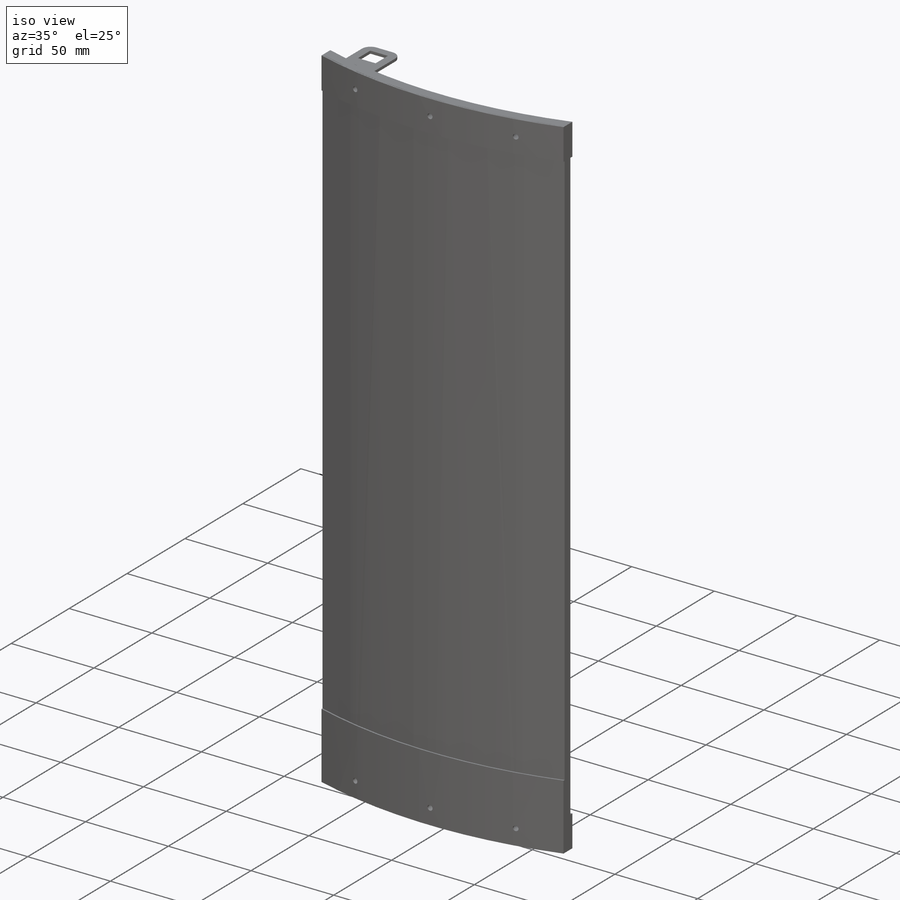
[diagram: iso view]
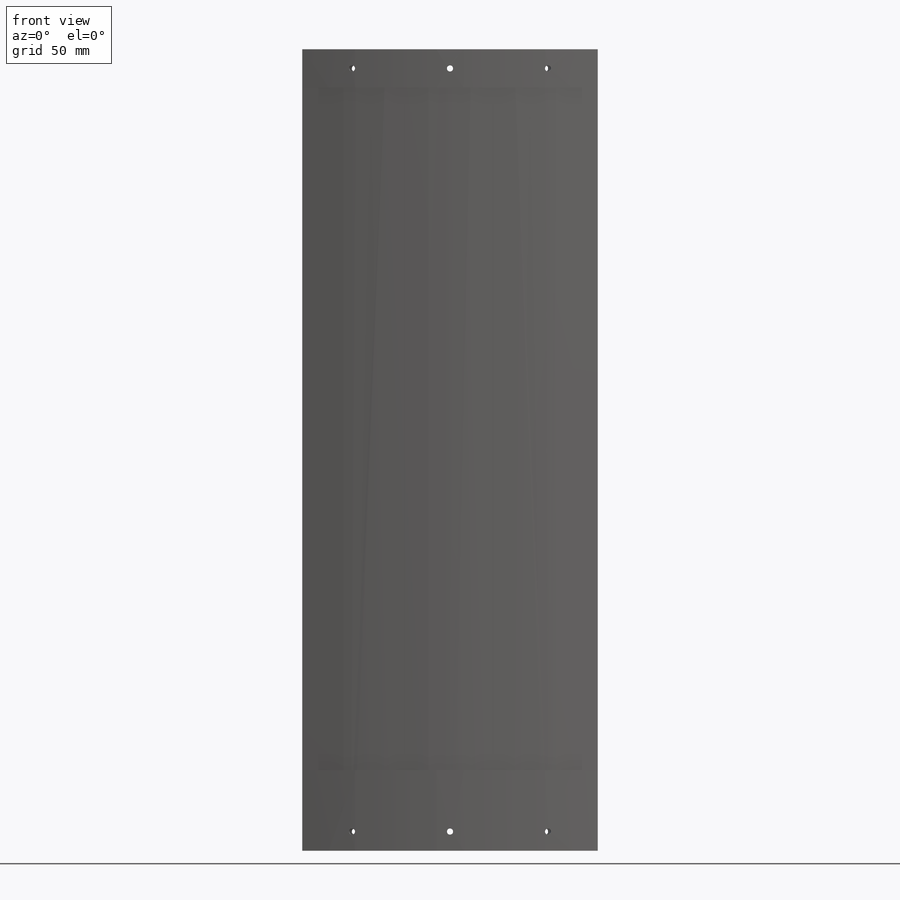
[diagram: front view]
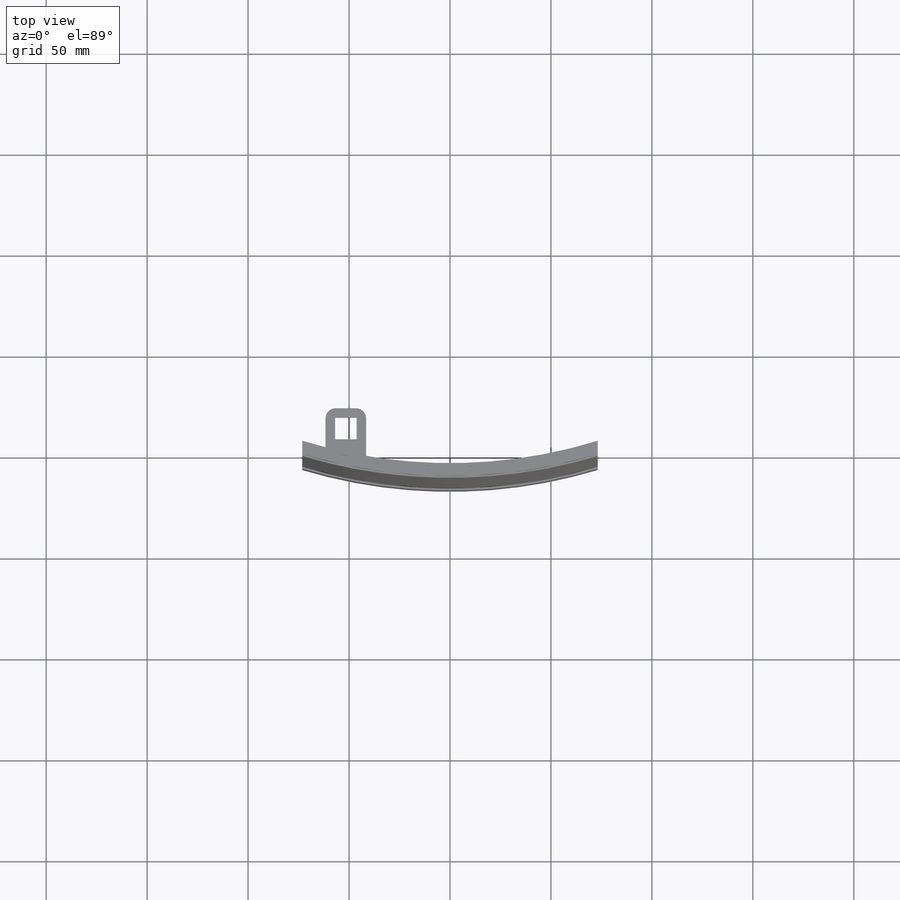
[diagram: top view]
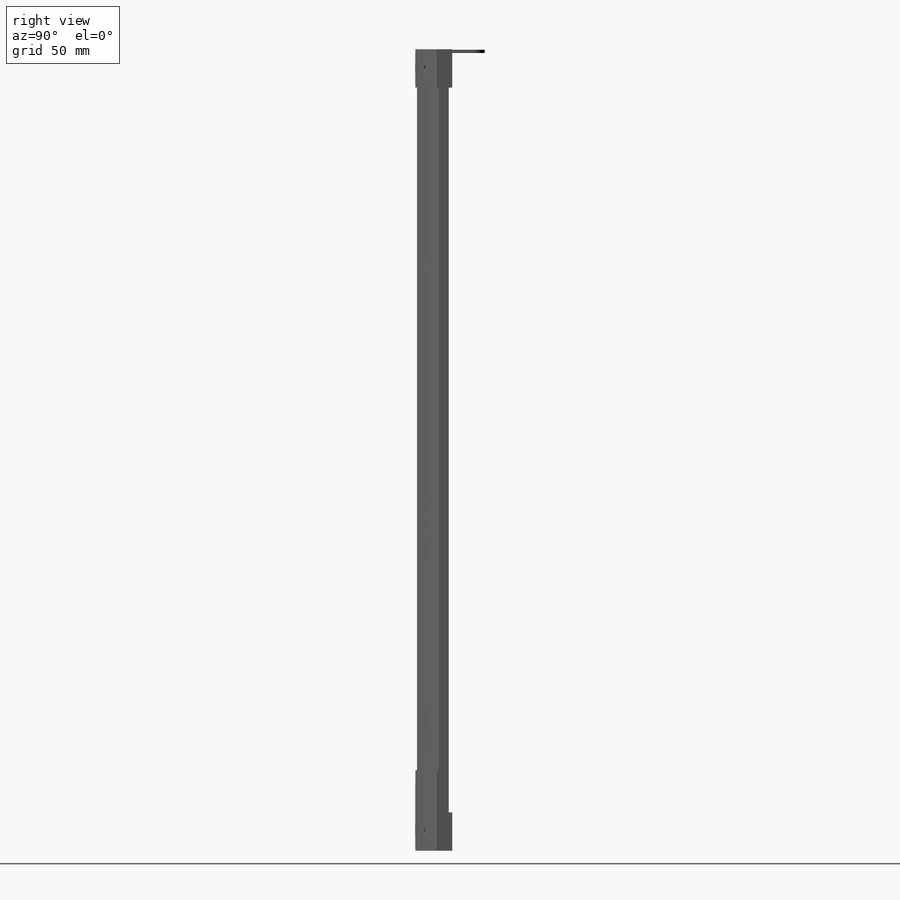
[diagram: right view]
SOLIDWORKS PART (.sldprt)
format: sldprt  version: not decoded by parser v0  size: 412,672 bytes
history: native  units: mm
features: sketch x8, extrude x6, fillet x6, cut_extrude x2, material x1, plane x1, pattern_circular x1, mirror x1 (+12 scaffold rows collapsed)
feature tree (38):
  scaffold x12  (default folders/planes/origin — collapsed)
  material  "Material <not specified>"
  sketch  "Sketch1"  dims[D2=248.7295mm D1=147.32mm D3=4.7625mm]
  extrude  "Boss-Extrude1"  Depth=398.272mm
  sketch  "Sketch2"  dims[D1=0.889mm]
  extrude  "Boss-Extrude2"  Depth=19.05mm
  sketch  "Sketch3"  dims[D1=1.651mm]
  extrude  "Boss-Extrude3"  Depth=19.05mm
  sketch  "Sketch4"  dims[D1=0.0mm]
  extrude  "Boss-Extrude4"  Depth=39.878mm
  sketch  "Sketch5"  dims[D1=0.0mm]
  extrude  "Boss-Extrude5"  Depth=19.05mm
  sketch  "Sketch6"
  cut_extrude  "Cut-Extrude1"  Depth=508mm
  plane  "Plane1"  Offset=1.524mm
  sketch  "Sketch7"  dims[c1.D1=10.0mm c2.D1=~179.947798deg c3.D1=19.05mm c3.D2=4.7625mm c3.D3=~2.60898mm c3.D4=4.7625mm c4.D1=4.7625mm c5.D1=~52.85328deg]
  extrude  "Boss-Extrude6"  Depth=1.651mm
  fillet  "Fillet1"  Radius=5.08mm
  fillet  "Move Face2"  Radius=1.27mm
  fillet  "Move Face3"  Radius=1.27mm
  fillet  "Move Face4"  Radius=1.27mm
  fillet  "Move Face5"  Radius=1.27mm
  sketch  "Sketch8"  dims[D1=3.048mm]
  cut_extrude  "Cut-Extrude3"  Depth=50.8mm
  pattern_circular  "CirPattern1"  Count=2 Angle=11deg
  mirror  "Mirror1"
  fillet  "Move Face6"  Radius=0.635mm
decode coverage: 22 of 24 modeling features carry decoded parameters
note: ~ marks probable driven/reference dimensions
note: suppression state not decoded; provenance and decode notes live in map.json
